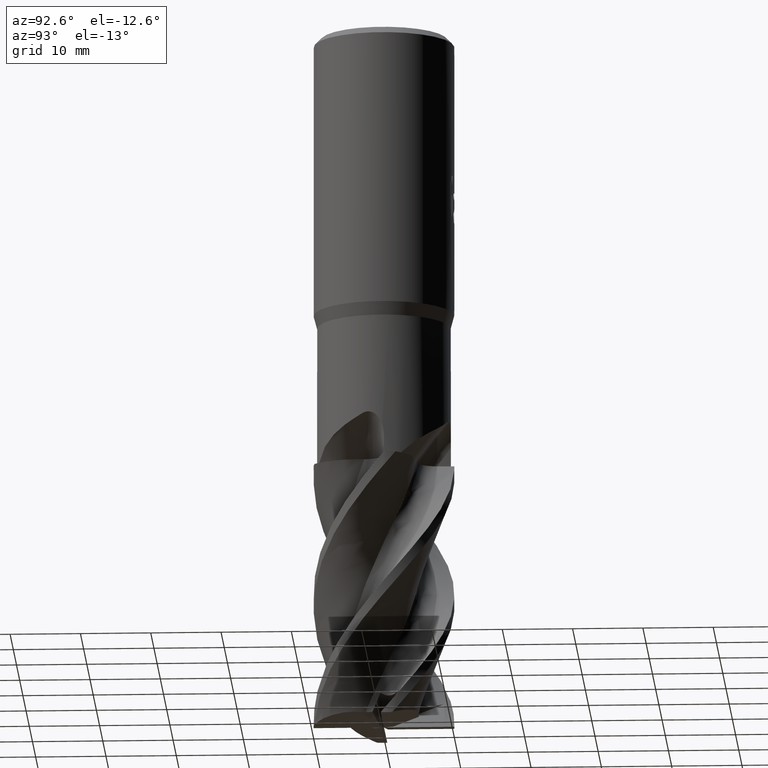
[diagram: clean part render]
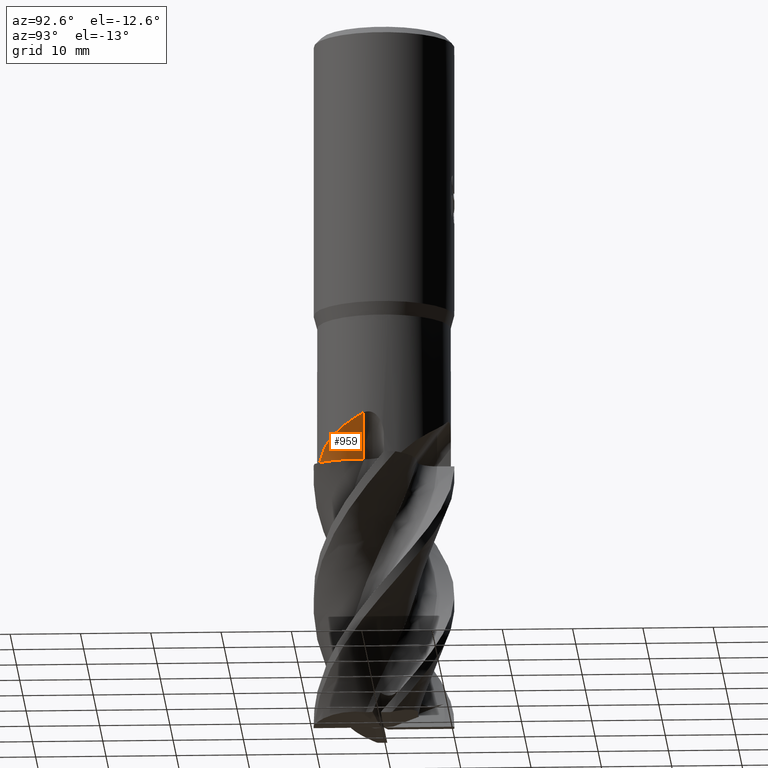
[diagram: same view with one face highlighted and labeled with its STEP entity id]
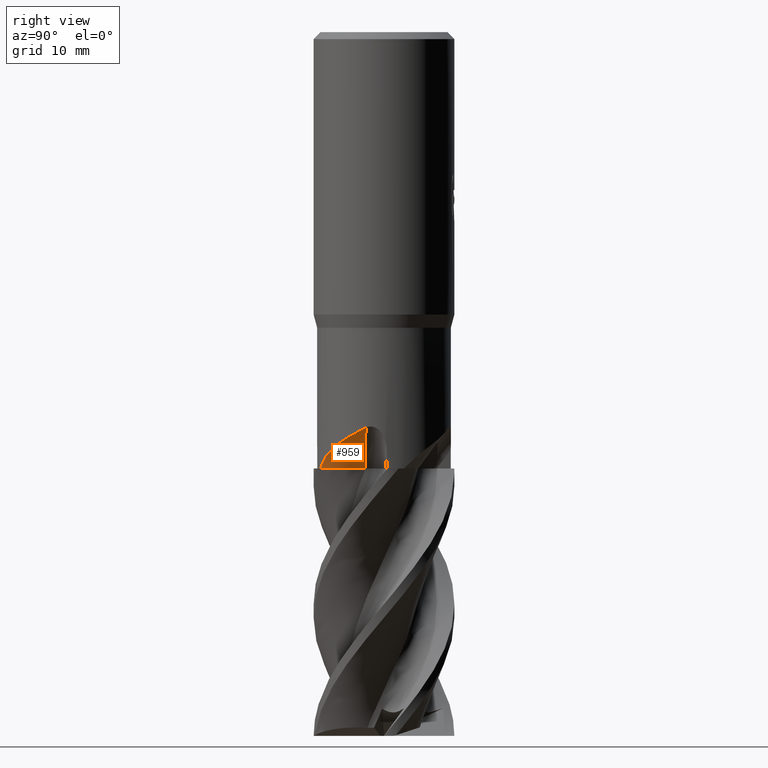
[diagram: same view with one face highlighted and labeled with its STEP entity id]
A machine part, auxiliary view. The second image highlights one B-rep face of the part: STEP entity #959.
A second angle (right view) of the same face is appended — the face is thin or edge-on in the first view.
In plain terms, the highlighted face is a SurfaceOfRevolution surface.
Its self-contained STEP definition (entity closure, byte-faithful):
#575=EDGE_CURVE('',#1001,#925,#1536,.T.);
#857=EDGE_CURVE('',#925,#1157,#1839,.T.);
#925=VERTEX_POINT('',#1912);
#959=ADVANCED_FACE('',(#1948),#1949,.F.);
#1001=VERTEX_POINT('',#1994);
#1157=VERTEX_POINT('',#2168);
#1241=EDGE_CURVE('',#1001,#1157,#2260,.T.);
#1536=CIRCLE('',#3288,7.95600000000001);
#1839=B_SPLINE_CURVE_WITH_KNOTS('',3,(#5653,#5654,#5655,#5656,#5657,#5658,#5659,#5660),.UNSPECIFIED.,.F.,.F.,(4,2,2,4),(0.0,3.2856552085503,6.98676370108799,11.3476906213312),.UNSPECIFIED.);
#1912=CARTESIAN_POINT('',(2.81680553652663,-9.07274250554334,-62.0));
#1948=FACE_OUTER_BOUND('',#6525,.T.);
#1949=SURFACE_OF_REVOLUTION('',#6526,#6527);
#1994=CARTESIAN_POINT('',(4.77990298355629,-2.65342278330758,-61.9999999999952));
#2168=CARTESIAN_POINT('',(9.14592295504645,-2.56926902111368,-56.1878462320742));
#2260=CIRCLE('',#9531,169.294436213456);
#3288=AXIS2_PLACEMENT_3D('',#10829,#10830,#10831);
#5653=CARTESIAN_POINT('',(2.81680553653112,-9.07274250554195,-61.9999999999952));
#5654=CARTESIAN_POINT('',(3.5542986497322,-8.84377373637988,-61.223353001243));
#5655=CARTESIAN_POINT('',(4.31114440288061,-8.51276732363402,-60.5526425694993));
#5656=CARTESIAN_POINT('',(5.92378998837385,-7.49520489297249,-59.245607868239));
#5657=CARTESIAN_POINT('',(6.72289634808784,-6.79976279711444,-58.6652529074178));
#5658=CARTESIAN_POINT('',(8.20838337535115,-4.95143925788644,-57.4460428407715));
#5659=CARTESIAN_POINT('',(8.8002351660073,-3.79982676305146,-56.8543522317869));
#5660=CARTESIAN_POINT('',(9.14592295504643,-2.56926902111372,-56.1878462320741));
#6525=EDGE_LOOP('',(#11180,#11181,#11182));
#6526=(B_SPLINE_CURVE(3,(#11184,#11185,#11186,#11187,#11188),.UNSPECIFIED.,.F.,.F.)B_SPLINE_CURVE_WITH_KNOTS((4,1,4),(0.214452016297937,0.435941873059131,0.657431729820324),.UNSPECIFIED.)RATIONAL_B_SPLINE_CURVE((1.04905775664809,1.01635258554936,0.983647414450636,1.01635258554936,1.04905775664809))BOUNDED_CURVE()REPRESENTATION_ITEM('')GEOMETRIC_REPRESENTATION_ITEM()CURVE());
#6527=AXIS1_PLACEMENT('',#11195,#11196);
#9531=AXIS2_PLACEMENT_3D('',#11501,#11502,#11503);
#10829=CARTESIAN_POINT('',(-3.09966290215702,-3.75359433934022,-61.9999999999952));
#10830=DIRECTION('',(-1.22124532708767E-015,1.2493478473985E-014,-1.0));
#10831=DIRECTION('',(0.990392896645714,0.138281995479211,5.1811043684981E-016));
#11180=ORIENTED_EDGE('',*,*,#857,.F.);
#11181=ORIENTED_EDGE('',*,*,#575,.F.);
#11182=ORIENTED_EDGE('',*,*,#1241,.T.);
#11184=CARTESIAN_POINT('',(4.77990298355629,-2.65342278330762,-61.9999999999952));
#11185=CARTESIAN_POINT('',(4.93974045454358,-3.79819868370618,-61.9999999999952));
#11186=CARTESIAN_POINT('',(4.7604419213705,-6.1610481253085,-61.9999999999952));
#11187=CARTESIAN_POINT('',(3.58570138501438,-8.21900587995755,-61.9999999999953));
#11188=CARTESIAN_POINT('',(2.81216417147033,-9.07790055250329,-61.9999999999953));
#11195=CARTESIAN_POINT('',(130.692381006918,-72.5179648574991,-151.025837663069));
#11196=DIRECTION('',(-0.32392158403507,-0.910646375784137,0.256511180394593));
#11501=CARTESIAN_POINT('',(130.692381006918,-72.5179648574991,-151.025837663069));
#11502=DIRECTION('',(0.32392158403507,0.910646375784137,-0.256511180394593));
#11503=DIRECTION('',(-0.737919915548547,0.412862907070773,0.533871162549445));